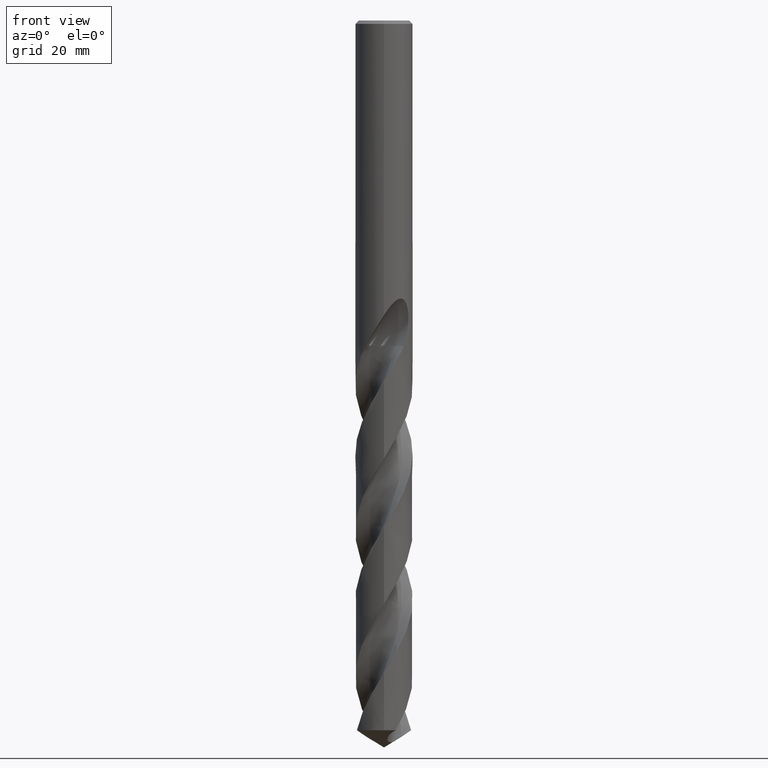
[diagram: clean part render]
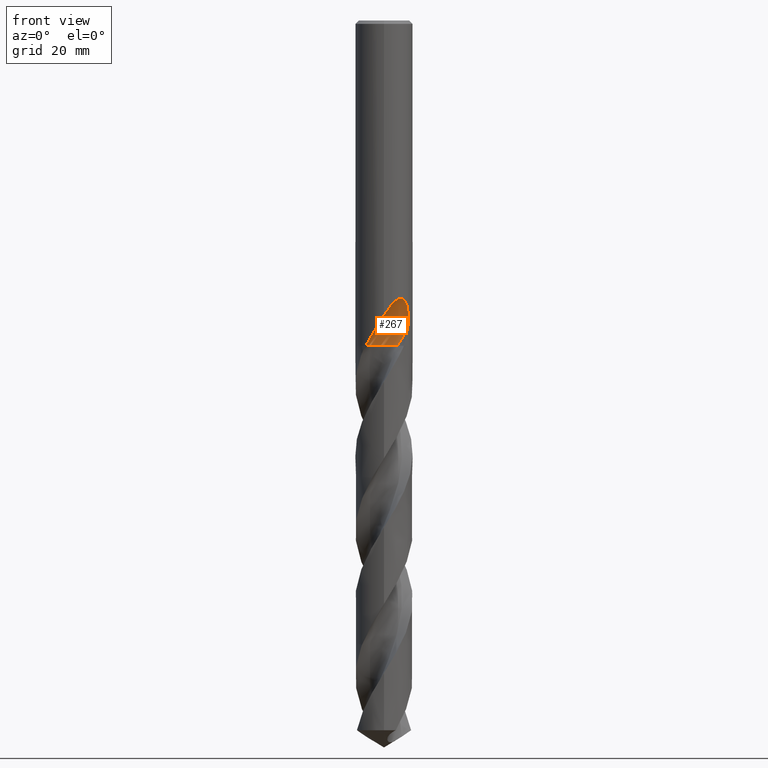
[diagram: same view with one face highlighted and labeled with its STEP entity id]
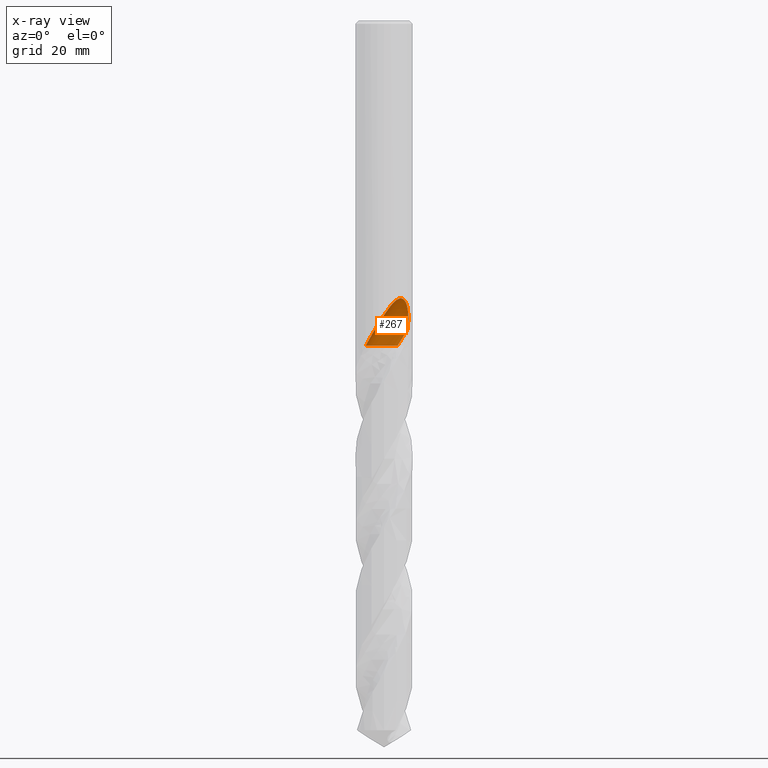
[diagram: x-ray of the same camera — body ghosted, the highlighted face saturated]
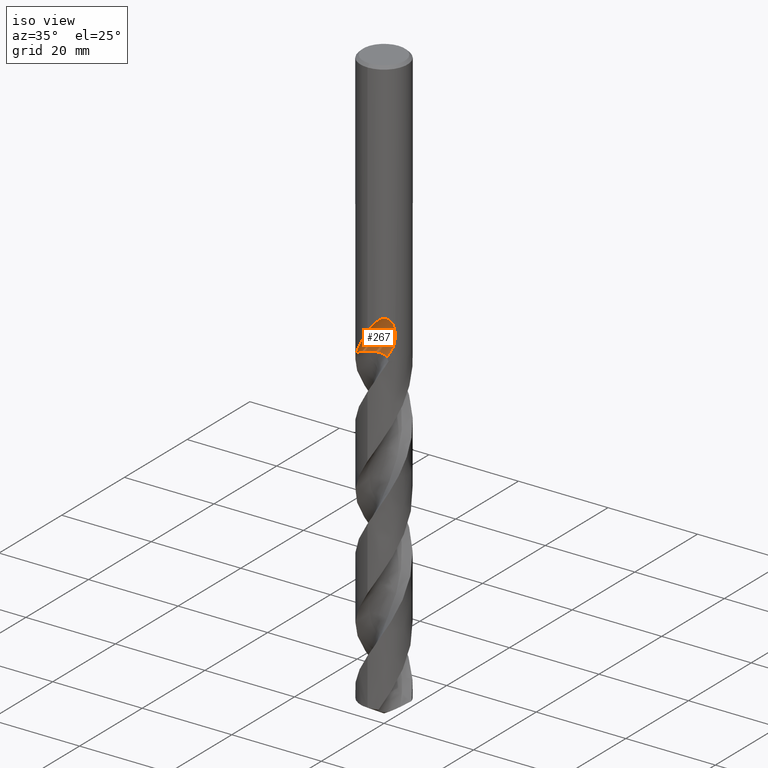
[diagram: same view with one face highlighted and labeled with its STEP entity id]
A machine part, front view. The second image highlights one B-rep face of the part: STEP entity #267.
The next image is the same camera in x-ray: the body ghosted, the highlighted face saturated — about 0% of this face is hidden behind the body in this view.
A second angle (iso view) of the same face is appended — the face is thin or edge-on in the first view.
In plain terms, the highlighted face is a SurfaceOfRevolution surface.
Its self-contained STEP definition (entity closure, byte-faithful):
#267=ADVANCED_FACE('',(#743),#744,.F.);
#271=VERTEX_POINT('',#748);
#287=VERTEX_POINT('',#766);
#315=EDGE_CURVE('',#481,#287,#796,.T.);
#339=EDGE_CURVE('',#661,#271,#823,.T.);
#377=EDGE_CURVE('',#287,#661,#862,.T.);
#481=VERTEX_POINT('',#974);
#583=EDGE_CURVE('',#481,#271,#1086,.T.);
#661=VERTEX_POINT('',#1170);
#743=FACE_OUTER_BOUND('',#1253,.T.);
#744=SURFACE_OF_REVOLUTION('',#1254,#1255);
#748=CARTESIAN_POINT('',(4.27162135735454,-3.052171518672,-56.6302038027643));
#766=CARTESIAN_POINT('',(-3.34300309684929,-4.04806500620433,-59.5));
#796=B_SPLINE_CURVE_WITH_KNOTS('',3,(#1883,#1884,#1885,#1886,#1887,#1888,#1889,#1890,#1891,#1892,#1893,#1894,#1895,#1896,#1897,#1898),.UNSPECIFIED.,.F.,.F.,(4,2,2,2,2,2,2,4),(0.0,1.36750804641084,2.73490513623651,4.10213693640599,5.46921496644338,6.83621359028393,7.66593469427711,8.49567765656717),.UNSPECIFIED.);
#823=B_SPLINE_CURVE_WITH_KNOTS('',3,(#3031,#3032,#3033,#3034,#3035,#3036,#3037,#3038,#3039,#3040,#3041,#3042,#3043,#3044,#3045,#3046,#3047,#3048,#3049,#3050,#3051,#3052,#3053,#3054,#3055,#3056,#3057,#3058,#3059,#3060),.UNSPECIFIED.,.F.,.F.,(4,2,2,2,2,2,2,2,2,2,2,2,2,2,4),(0.0,2.56856320752265,3.97271350027368,5.24506433148082,6.72354916384614,8.49927682704345,10.0360810336537,10.7333505914258,11.2430145050656,11.7253351143545,12.3372318489402,13.2324992318586,14.5052005400863,15.3377357336065,16.2126627555783),.UNSPECIFIED.);
#862=B_SPLINE_CURVE_WITH_KNOTS('',3,(#3288,#3289,#3290,#3291,#3292,#3293,#3294,#3295,#3296,#3297,#3298,#3299,#3300,#3301,#3302,#3303,#3304,#3305,#3306,#3307,#3308,#3309,#3310,#3311,#3312,#3313,#3314,#3315,#3316,#3317),.UNSPECIFIED.,.F.,.F.,(4,2,2,2,2,2,2,2,2,2,2,2,2,2,4),(0.0,2.56856320752265,3.97271350027368,5.24506433148082,6.72354916384614,8.49927682704345,10.0360810336537,10.7333505914258,11.2430145050656,11.7253351143545,12.3372318489402,13.2324992318586,14.5052005400863,15.3377357336065,16.2126627555783),.UNSPECIFIED.);
#974=CARTESIAN_POINT('',(2.47799873408221,-2.60046661560496,-59.5));
#1086=CIRCLE('',#4552,22.8126144757953);
#1170=CARTESIAN_POINT('',(1.61969276288613E-012,-5.25,-53.9243709465312));
#1253=EDGE_LOOP('',(#6817,#6818,#6819,#6820));
#1254=(B_SPLINE_CURVE(3,(#6822,#6823,#6824,#6825,#6826,#6827,#6828,#6829,#6830),.UNSPECIFIED.,.F.,.F.)B_SPLINE_CURVE_WITH_KNOTS((4,1,3,1,4),(-2.85637092439726,-2.55358340989939,-2.25079589540153,-1.94800838090366,-1.64522086640579),.UNSPECIFIED.)RATIONAL_B_SPLINE_CURVE((1.0916802789358,1.0305600929786,0.969439907021401,1.0305600929786,1.0916802789358,1.0305600929786,0.969439907021401,1.0305600929786,1.0916802789358))BOUNDED_CURVE()REPRESENTATION_ITEM('')GEOMETRIC_REPRESENTATION_ITEM()CURVE());
#1255=AXIS1_PLACEMENT('',#6837,#6838);
#1883=CARTESIAN_POINT('',(2.47799873408221,-2.60046661560496,-59.5));
#1884=CARTESIAN_POINT('',(2.15570095421479,-2.27811492243063,-59.5));
#1885=CARTESIAN_POINT('',(1.77352139709404,-2.02179481050213,-59.5));
#1886=CARTESIAN_POINT('',(0.932457227440753,-1.67010205014239,-59.5));
#1887=CARTESIAN_POINT('',(0.481617502231438,-1.57807785646059,-59.5));
#1888=CARTESIAN_POINT('',(-0.429902687288129,-1.57204004812352,-59.5));
#1889=CARTESIAN_POINT('',(-0.881866896569385,-1.65806287554698,-59.5));
#1890=CARTESIAN_POINT('',(-1.72732836355938,-1.99850842423821,-59.5));
#1891=CARTESIAN_POINT('',(-2.11274612685391,-2.24965640589784,-59.5));
#1892=CARTESIAN_POINT('',(-2.76559465179994,-2.88554444376482,-59.5));
#1893=CARTESIAN_POINT('',(-3.02678676948046,-3.26419358282321,-59.5));
#1894=CARTESIAN_POINT('',(-3.3180846610964,-3.93599325894574,-59.5));
#1895=CARTESIAN_POINT('',(-3.39764126332879,-4.20188892319752,-59.5));
#1896=CARTESIAN_POINT('',(-3.49248797601123,-4.74684859033664,-59.5));
#1897=CARTESIAN_POINT('',(-3.50744265950992,-5.02399526322947,-59.5));
#1898=CARTESIAN_POINT('',(-3.48961785808894,-5.3,-59.5));
#3031=CARTESIAN_POINT('',(-3.34300309684929,-4.04806500620433,-59.5));
#3032=CARTESIAN_POINT('',(-2.99687822959538,-4.3339044137615,-58.7709246620821));
#3033=CARTESIAN_POINT('',(-2.59911045208701,-4.58789438146424,-58.091008233867));
#3034=CARTESIAN_POINT('',(-1.90552422998388,-4.89935642873079,-56.9549437452271));
#3035=CARTESIAN_POINT('',(-1.65575870932603,-4.98901513655451,-56.5549235405047));
#3036=CARTESIAN_POINT('',(-1.17216404099528,-5.12303033228772,-55.7804534587544));
#3037=CARTESIAN_POINT('',(-0.940482875853001,-5.17037770699667,-55.4095956870673));
#3038=CARTESIAN_POINT('',(-0.438936575422659,-5.23868760604929,-54.6102277355297));
#3039=CARTESIAN_POINT('',(-0.164868958937861,-5.25469376107535,-54.1754425452885));
#3040=CARTESIAN_POINT('',(0.443725962911433,-5.24174994041205,-53.2454270976495));
#3041=CARTESIAN_POINT('',(0.804588683468086,-5.2020642357076,-52.7162394633374));
#3042=CARTESIAN_POINT('',(1.50001764722721,-5.04202864043488,-51.8444422866277));
#3043=CARTESIAN_POINT('',(1.8843802813509,-4.92029603540759,-51.4195098901514));
#3044=CARTESIAN_POINT('',(2.46633925228444,-4.6390051665454,-51.0212964624024));
#3045=CARTESIAN_POINT('',(2.6591272909741,-4.53272694860848,-50.9228096802394));
#3046=CARTESIAN_POINT('',(2.99694485361629,-4.31389739293939,-50.847172668473));
#3047=CARTESIAN_POINT('',(3.1355067757508,-4.21423813289497,-50.8457781490611));
#3048=CARTESIAN_POINT('',(3.39358907946698,-4.00896014608491,-50.91204928158));
#3049=CARTESIAN_POINT('',(3.50646270782271,-3.90981372767206,-50.974170961234));
#3050=CARTESIAN_POINT('',(3.73616446599896,-3.69253811426573,-51.1685304660962));
#3051=CARTESIAN_POINT('',(3.84243540459419,-3.57993917174466,-51.3120284745182));
#3052=CARTESIAN_POINT('',(4.06011292075334,-3.33407137982889,-51.7049672032232));
#3053=CARTESIAN_POINT('',(4.16415594422415,-3.20018061934934,-51.9964129061582));
#3054=CARTESIAN_POINT('',(4.35979084456623,-2.93135113066713,-52.8118237590714));
#3055=CARTESIAN_POINT('',(4.43050770497261,-2.81685830844486,-53.3925419090501));
#3056=CARTESIAN_POINT('',(4.4654646539759,-2.76094286092583,-54.46714703385));
#3057=CARTESIAN_POINT('',(4.45722028986141,-2.77461263102338,-54.8950053842224));
#3058=CARTESIAN_POINT('',(4.39906999185343,-2.86596621063543,-55.7633393988255));
#3059=CARTESIAN_POINT('',(4.34716192323178,-2.9464498406556,-56.2005470335072));
#3060=CARTESIAN_POINT('',(4.27162135735455,-3.052171518672,-56.6302038027643));
#3288=CARTESIAN_POINT('',(-3.34300309684929,-4.04806500620433,-59.5));
#3289=CARTESIAN_POINT('',(-2.99687822959538,-4.3339044137615,-58.7709246620821));
#3290=CARTESIAN_POINT('',(-2.59911045208701,-4.58789438146424,-58.091008233867));
#3291=CARTESIAN_POINT('',(-1.90552422998388,-4.89935642873079,-56.9549437452271));
#3292=CARTESIAN_POINT('',(-1.65575870932603,-4.98901513655451,-56.5549235405047));
#3293=CARTESIAN_POINT('',(-1.17216404099528,-5.12303033228772,-55.7804534587544));
#3294=CARTESIAN_POINT('',(-0.940482875853001,-5.17037770699667,-55.4095956870673));
#3295=CARTESIAN_POINT('',(-0.438936575422659,-5.23868760604929,-54.6102277355297));
#3296=CARTESIAN_POINT('',(-0.164868958937861,-5.25469376107535,-54.1754425452885));
#3297=CARTESIAN_POINT('',(0.443725962911433,-5.24174994041205,-53.2454270976495));
#3298=CARTESIAN_POINT('',(0.804588683468086,-5.2020642357076,-52.7162394633374));
#3299=CARTESIAN_POINT('',(1.50001764722721,-5.04202864043488,-51.8444422866277));
#3300=CARTESIAN_POINT('',(1.8843802813509,-4.92029603540759,-51.4195098901514));
#3301=CARTESIAN_POINT('',(2.46633925228444,-4.6390051665454,-51.0212964624024));
#3302=CARTESIAN_POINT('',(2.6591272909741,-4.53272694860848,-50.9228096802394));
#3303=CARTESIAN_POINT('',(2.99694485361629,-4.31389739293939,-50.847172668473));
#3304=CARTESIAN_POINT('',(3.1355067757508,-4.21423813289497,-50.8457781490611));
#3305=CARTESIAN_POINT('',(3.39358907946698,-4.00896014608491,-50.91204928158));
#3306=CARTESIAN_POINT('',(3.50646270782271,-3.90981372767206,-50.974170961234));
#3307=CARTESIAN_POINT('',(3.73616446599896,-3.69253811426573,-51.1685304660962));
#3308=CARTESIAN_POINT('',(3.84243540459419,-3.57993917174466,-51.3120284745182));
#3309=CARTESIAN_POINT('',(4.06011292075334,-3.33407137982889,-51.7049672032232));
#3310=CARTESIAN_POINT('',(4.16415594422415,-3.20018061934934,-51.9964129061582));
#3311=CARTESIAN_POINT('',(4.35979084456623,-2.93135113066713,-52.8118237590714));
#3312=CARTESIAN_POINT('',(4.43050770497261,-2.81685830844486,-53.3925419090501));
#3313=CARTESIAN_POINT('',(4.4654646539759,-2.76094286092583,-54.46714703385));
#3314=CARTESIAN_POINT('',(4.45722028986141,-2.77461263102338,-54.8950053842224));
#3315=CARTESIAN_POINT('',(4.39906999185343,-2.86596621063543,-55.7633393988255));
#3316=CARTESIAN_POINT('',(4.34716192323178,-2.9464498406556,-56.2005470335072));
#3317=CARTESIAN_POINT('',(4.27162135735455,-3.052171518672,-56.6302038027643));
#4552=AXIS2_PLACEMENT_3D('',#7168,#7169,#7170);
#6817=ORIENTED_EDGE('',*,*,#315,.F.);
#6818=ORIENTED_EDGE('',*,*,#583,.T.);
#6819=ORIENTED_EDGE('',*,*,#339,.F.);
#6820=ORIENTED_EDGE('',*,*,#377,.F.);
#6822=CARTESIAN_POINT('',(2.47487373408221,-2.6001262659178,-59.505));
#6823=CARTESIAN_POINT('',(1.99011778626057,-2.1153629892008,-59.505));
#6824=CARTESIAN_POINT('',(0.729611762994054,-1.42655954672264,-59.505));
#6825=CARTESIAN_POINT('',(-0.698852370382493,-1.57760866693759,-59.505));
#6826=CARTESIAN_POINT('',(-1.33275940006419,-1.83865586788406,-59.505));
#6827=CARTESIAN_POINT('',(-1.96666642974589,-2.09970306883054,-59.505));
#6828=CARTESIAN_POINT('',(-3.08725589422234,-2.99837145548119,-59.505));
#6829=CARTESIAN_POINT('',(-3.4971753091621,-4.37506738789197,-59.505));
#6830=CARTESIAN_POINT('',(-3.4999892248257,-5.06061523106595,-59.505));
#6837=CARTESIAN_POINT('',(1.77968448293552,-25.375,-60.6173028018347));
#6838=DIRECTION('',(-0.847998304005088,0.0,0.52999894000318));
#7168=CARTESIAN_POINT('',(1.77968448293552,-25.375,-60.6173028018347));
#7169=DIRECTION('',(0.847998304005088,0.0,-0.52999894000318));
#7170=DIRECTION('',(0.0535598122533606,0.994880693138896,0.085695699605377));